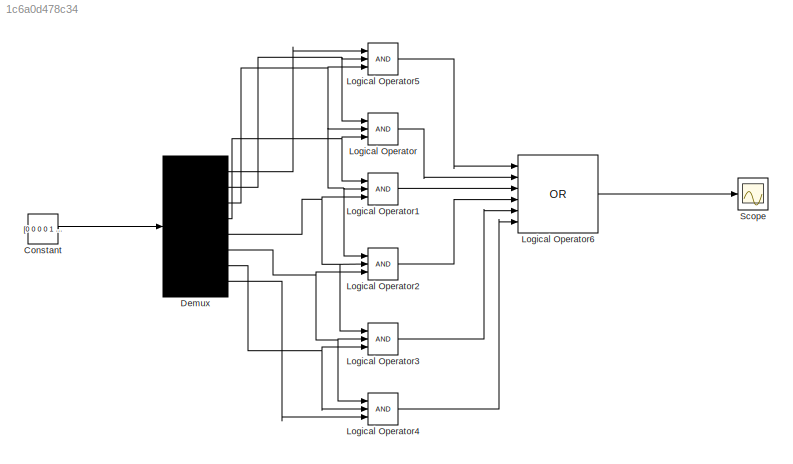
MODEL slx_1c6a0d478c34
KIND model
CONFIG AbsTol = auto
CONFIG EnableMultiTasking = off
CONFIG FixedStep = auto
CONFIG MaxStep = auto
CONFIG MinStep = auto
CONFIG RelTol = 1e-3
CONFIG SampleTimeConstraint = Unconstrained
CONFIG Solver = VariableStepAuto
CONFIG SolverName = VariableStepAuto
CONFIG StartTime = 0.0
CONFIG StopTime = 10.0
BLOCK [Constant] Constant
  Value = [0 0 0 0 1 0 1 1]
BLOCK [Demux] Demux
  DisplayOption = bar
  Outputs = 8
  Ports = [1, 8]
BLOCK [Logic] Logical Operator
  AllPortsSameDT = off
  IconShape = distinctive
  Inputs = 3
  OutDataTypeStr = boolean
  Ports = [3, 1]
BLOCK [Logic] Logical Operator1
  AllPortsSameDT = off
  IconShape = distinctive
  Inputs = 3
  OutDataTypeStr = boolean
  Ports = [3, 1]
BLOCK [Logic] Logical Operator2
  AllPortsSameDT = off
  IconShape = distinctive
  Inputs = 3
  OutDataTypeStr = boolean
  Ports = [3, 1]
BLOCK [Logic] Logical Operator3
  AllPortsSameDT = off
  IconShape = distinctive
  Inputs = 3
  OutDataTypeStr = boolean
  Ports = [3, 1]
BLOCK [Logic] Logical Operator4
  AllPortsSameDT = off
  IconShape = distinctive
  Inputs = 3
  OutDataTypeStr = boolean
  Ports = [3, 1]
BLOCK [Logic] Logical Operator5
  AllPortsSameDT = off
  IconShape = distinctive
  Inputs = 3
  OutDataTypeStr = boolean
  Ports = [3, 1]
BLOCK [Logic] Logical Operator6
  AllPortsSameDT = off
  IconShape = distinctive
  Inputs = 6
  Operator = OR
  OutDataTypeStr = boolean
  Ports = [6, 1]
BLOCK [Scope] Scope
  Floating = off
  NumInputPorts = 1
  Ports = [1]
  ScopeSpecificationString = Simulink.scopes.TimeScopeBlockCfg('CurrentConfiguration', extmgr.ConfigurationSet(extmgr.Configuration('Core','General UI',true),extmgr.Configuration('Core','Source UI',true),extmgr.Configuration('Sources','WiredSimulink',true),extmgr.Configuration('Visuals','Time Domain',true,'SerializedDisplays',{struct('MinYLimReal','-1.00000','MaxYLimReal','1.00000','YLabelReal','','MinYLimMag','0.00000','MaxY...<+1337ch>
LINE Constant:1 -> Demux:1
LINE Demux:1 -> Logical Operator5:1
NET Demux:2 -> Logical Operator5:2, Logical Operator:1
NET Demux:3 -> Logical Operator1:2, Logical Operator2:1, Logical Operator5:3, Logical Operator:2
NET Demux:4 -> Logical Operator1:1, Logical Operator:3
NET Demux:5 -> Logical Operator1:3, Logical Operator2:2, Logical Operator3:1
NET Demux:6 -> Logical Operator2:3, Logical Operator3:2, Logical Operator4:1
NET Demux:7 -> Logical Operator3:3, Logical Operator4:2
LINE Demux:8 -> Logical Operator4:3
LINE Logical Operator1:1 -> Logical Operator6:3
LINE Logical Operator2:1 -> Logical Operator6:4
LINE Logical Operator3:1 -> Logical Operator6:5
LINE Logical Operator4:1 -> Logical Operator6:6
LINE Logical Operator5:1 -> Logical Operator6:1
LINE Logical Operator6:1 -> Scope:1
LINE Logical Operator:1 -> Logical Operator6:2
note: NET lines group one-source signal fan-out (src -> all destinations, sorted); 1:1 wires keep LINE
